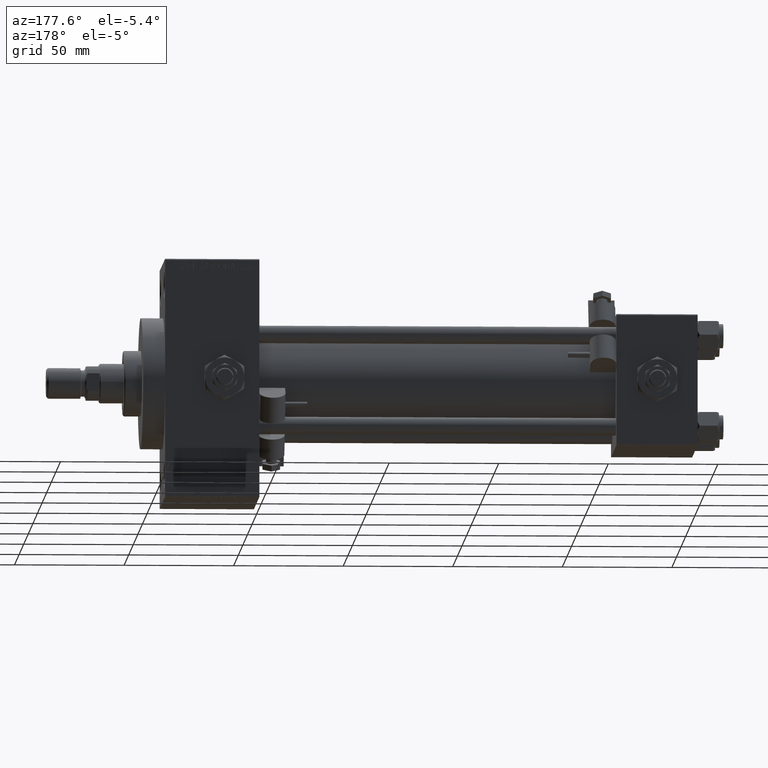
[diagram: clean part render]
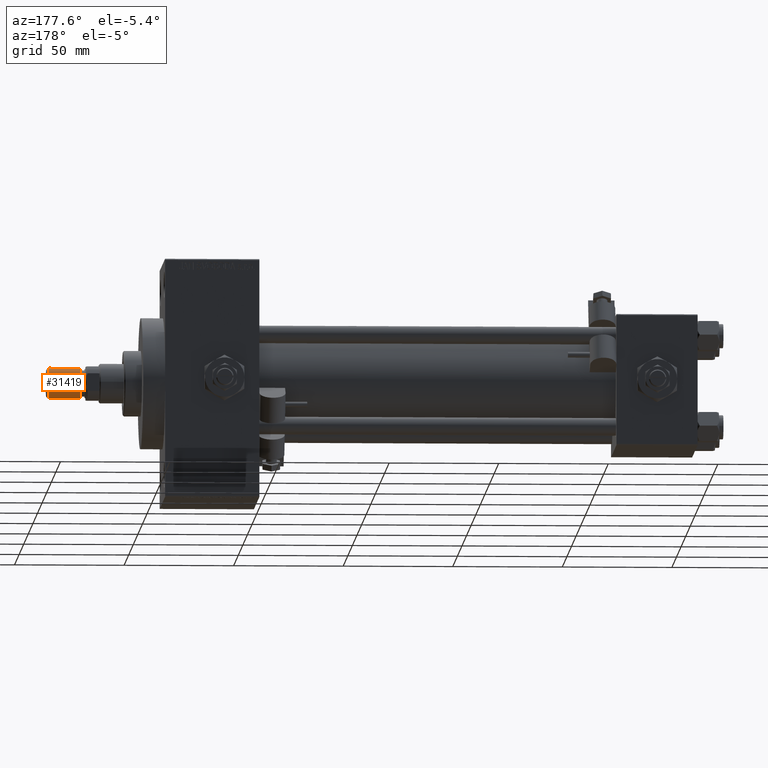
[diagram: same view with one face highlighted and labeled with its STEP entity id]
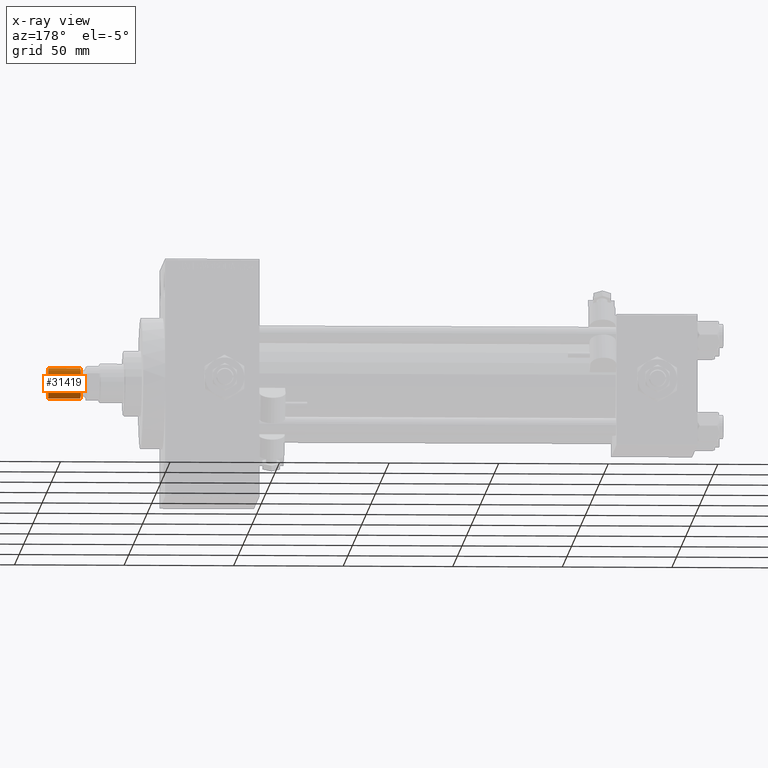
[diagram: x-ray of the same camera — body ghosted, the highlighted face saturated]
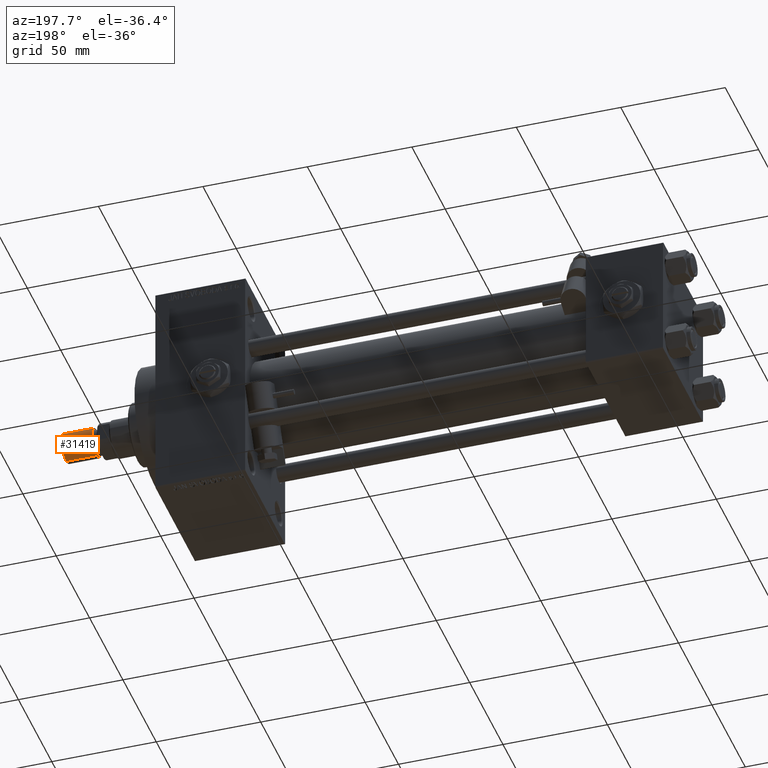
[diagram: same view with one face highlighted and labeled with its STEP entity id]
A machine part, auxiliary view. The second image highlights one B-rep face of the part: STEP entity #31419.
The next image is the same camera in x-ray: the body ghosted, the highlighted face saturated — about 0% of this face is hidden behind the body in this view.
A second angle (auxiliary view) of the same face is appended — the face is thin or edge-on in the first view.
In plain terms, the highlighted cylindrical surface (edge-blend (fillet) strip) has radius 7 mm, axis along (1, -0, -0).
Its self-contained STEP definition (entity closure, byte-faithful):
#100 = CIRCLE ( 'NONE', #6664, 7.000000000000000000 ) ;
#4186 = CARTESIAN_POINT ( 'NONE',  ( 7.000000000000000000, 8.572527594031473190E-16, 15.50000000000000000 ) ) ;
#4330 = DIRECTION ( 'NONE',  ( 0.000000000000000000, 0.000000000000000000, 1.000000000000000000 ) ) ;
#6664 = AXIS2_PLACEMENT_3D ( 'NONE', #24414, #35725, #32377 ) ;
#7871 = VECTOR ( 'NONE', #15033, 1000.000000000000000 ) ;
#8274 = DIRECTION ( 'NONE',  ( -0.000000000000000000, -0.000000000000000000, -1.000000000000000000 ) ) ;
#10845 = LINE ( 'NONE', #42218, #28727 ) ;
#10856 = FACE_OUTER_BOUND ( 'NONE', #15223, .T. ) ;
#12783 = CARTESIAN_POINT ( 'NONE',  ( 0.000000000000000000, 0.000000000000000000, 15.50000000000000000 ) ) ;
#14326 = ORIENTED_EDGE ( 'NONE', *, *, #43672, .F. ) ;
#15033 = DIRECTION ( 'NONE',  ( -0.000000000000000000, -0.000000000000000000, -1.000000000000000000 ) ) ;
#15223 = EDGE_LOOP ( 'NONE', ( #49257, #39399, #39343, #14326 ) ) ;
#15739 = EDGE_CURVE ( 'NONE', #21503, #39229, #36121, .T. ) ;
#17068 = CARTESIAN_POINT ( 'NONE',  ( 7.000000000000000000, 8.572527594031473190E-16, 0.8000000000000020428 ) ) ;
#18060 = AXIS2_PLACEMENT_3D ( 'NONE', #12783, #4330, #24125 ) ;
#21503 = VERTEX_POINT ( 'NONE', #4186 ) ;
#24125 = DIRECTION ( 'NONE',  ( 1.000000000000000000, 0.000000000000000000, 0.000000000000000000 ) ) ;
#24414 = CARTESIAN_POINT ( 'NONE',  ( 0.000000000000000000, 0.000000000000000000, 0.8000000000000020428 ) ) ;
#26547 = CYLINDRICAL_SURFACE ( 'NONE', #39075, 7.000000000000000000 ) ;
#27385 = LINE ( 'NONE', #50253, #7871 ) ;
#28727 = VECTOR ( 'NONE', #45321, 1000.000000000000000 ) ;
#31419 = ADVANCED_FACE ( 'NONE', ( #10856 ), #26547, .T. ) ;
#32118 = EDGE_CURVE ( 'NONE', #21503, #32201, #27385, .T. ) ;
#32201 = VERTEX_POINT ( 'NONE', #17068 ) ;
#32377 = DIRECTION ( 'NONE',  ( 1.000000000000000000, 0.000000000000000000, 0.000000000000000000 ) ) ;
#35725 = DIRECTION ( 'NONE',  ( -0.000000000000000000, -0.000000000000000000, 1.000000000000000000 ) ) ;
#36121 = CIRCLE ( 'NONE', #18060, 7.000000000000000000 ) ;
#39075 = AXIS2_PLACEMENT_3D ( 'NONE', #43501, #8274, #47356 ) ;
#39229 = VERTEX_POINT ( 'NONE', #43112 ) ;
#39343 = ORIENTED_EDGE ( 'NONE', *, *, #45644, .T. ) ;
#39399 = ORIENTED_EDGE ( 'NONE', *, *, #32118, .T. ) ;
#40032 = CARTESIAN_POINT ( 'NONE',  ( -7.000000000000000000, 0.000000000000000000, 0.8000000000000020428 ) ) ;
#42218 = CARTESIAN_POINT ( 'NONE',  ( -7.000000000000000000, 0.000000000000000000, 15.50000000000000000 ) ) ;
#43112 = CARTESIAN_POINT ( 'NONE',  ( -7.000000000000000000, 0.000000000000000000, 15.50000000000000000 ) ) ;
#43501 = CARTESIAN_POINT ( 'NONE',  ( 0.000000000000000000, 0.000000000000000000, 15.50000000000000000 ) ) ;
#43672 = EDGE_CURVE ( 'NONE', #39229, #44782, #10845, .T. ) ;
#44782 = VERTEX_POINT ( 'NONE', #40032 ) ;
#45321 = DIRECTION ( 'NONE',  ( -0.000000000000000000, -0.000000000000000000, -1.000000000000000000 ) ) ;
#45644 = EDGE_CURVE ( 'NONE', #32201, #44782, #100, .T. ) ;
#47356 = DIRECTION ( 'NONE',  ( -1.000000000000000000, 0.000000000000000000, 0.000000000000000000 ) ) ;
#49257 = ORIENTED_EDGE ( 'NONE', *, *, #15739, .F. ) ;
#50253 = CARTESIAN_POINT ( 'NONE',  ( 7.000000000000000000, 8.572527594031473190E-16, 15.50000000000000000 ) ) ;